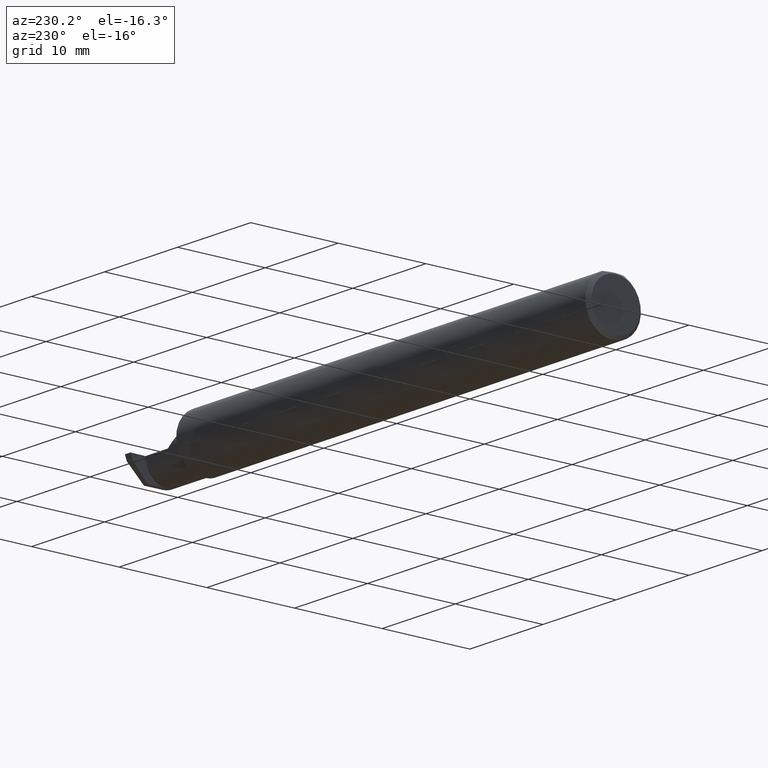
[diagram: clean part render]
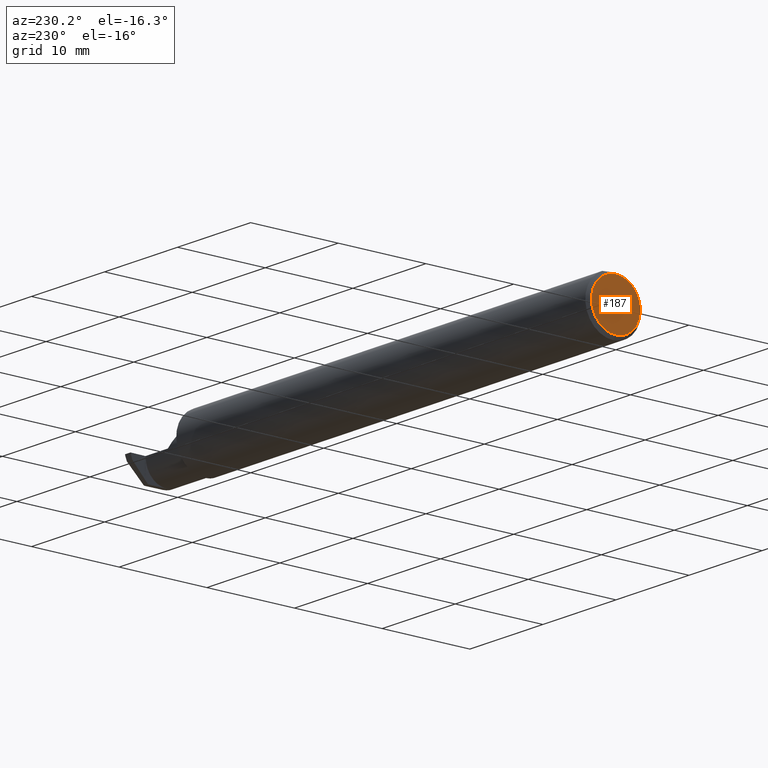
[diagram: same view with one face highlighted and labeled with its STEP entity id]
A machine part, auxiliary view. The second image highlights one B-rep face of the part: STEP entity #187.
In plain terms, the highlighted planar face has unit normal (1, 0, 0).
Its self-contained STEP definition (entity closure, byte-faithful):
#6 = DIRECTION ( 'NONE',  ( -1.000000000000000000, -0.000000000000000000, -0.000000000000000000 ) ) ;
#7 = DIRECTION ( 'NONE',  ( 0.000000000000000000, 0.000000000000000000, 1.000000000000000000 ) ) ;
#16 = CARTESIAN_POINT ( 'NONE',  ( 0.000000000000000000, 0.000000000000000000, 0.000000000000000000 ) ) ;
#33 = PLANE ( 'NONE',  #209 ) ;
#118 = CIRCLE ( 'NONE', #273, 0.1098500000000000032 ) ;
#187 = ADVANCED_FACE ( 'NONE', ( #344 ), #33, .F. ) ;
#209 = AXIS2_PLACEMENT_3D ( 'NONE', #283, #518, #481 ) ;
#252 = DIRECTION ( 'NONE',  ( 0.000000000000000000, 0.000000000000000000, 1.000000000000000000 ) ) ;
#255 = ORIENTED_EDGE ( 'NONE', *, *, #361, .T. ) ;
#273 = AXIS2_PLACEMENT_3D ( 'NONE', #16, #614, #7 ) ;
#283 = CARTESIAN_POINT ( 'NONE',  ( 0.000000000000000000, 0.000000000000000000, 0.000000000000000000 ) ) ;
#344 = FACE_OUTER_BOUND ( 'NONE', #667, .T. ) ;
#361 = EDGE_CURVE ( 'NONE', #386, #375, #118, .T. ) ;
#375 = VERTEX_POINT ( 'NONE', #627 ) ;
#386 = VERTEX_POINT ( 'NONE', #393 ) ;
#393 = CARTESIAN_POINT ( 'NONE',  ( 0.000000000000000000, 0.000000000000000000, -0.1098500000000000032 ) ) ;
#429 = CARTESIAN_POINT ( 'NONE',  ( 0.000000000000000000, 0.000000000000000000, 0.000000000000000000 ) ) ;
#481 = DIRECTION ( 'NONE',  ( 0.000000000000000000, 0.000000000000000000, -1.000000000000000000 ) ) ;
#518 = DIRECTION ( 'NONE',  ( 1.000000000000000000, 0.000000000000000000, 0.000000000000000000 ) ) ;
#614 = DIRECTION ( 'NONE',  ( -1.000000000000000000, -0.000000000000000000, -0.000000000000000000 ) ) ;
#627 = CARTESIAN_POINT ( 'NONE',  ( 0.000000000000000000, 1.437123018799419134E-17, 0.1098500000000000032 ) ) ;
#650 = AXIS2_PLACEMENT_3D ( 'NONE', #429, #6, #252 ) ;
#665 = EDGE_CURVE ( 'NONE', #375, #386, #674, .T. ) ;
#667 = EDGE_LOOP ( 'NONE', ( #255, #743 ) ) ;
#674 = CIRCLE ( 'NONE', #650, 0.1098500000000000032 ) ;
#743 = ORIENTED_EDGE ( 'NONE', *, *, #665, .T. ) ;